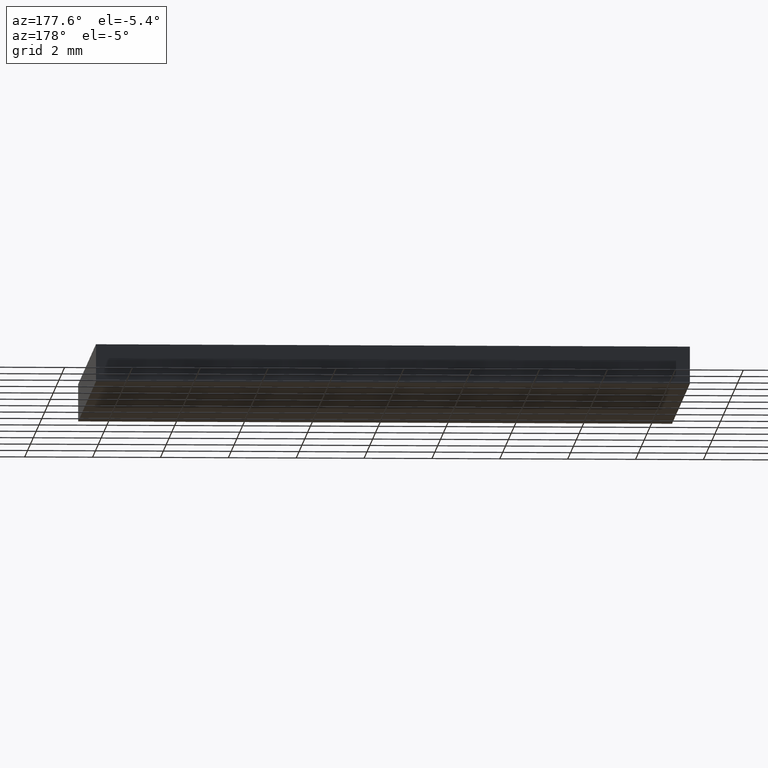
[diagram: clean part render]
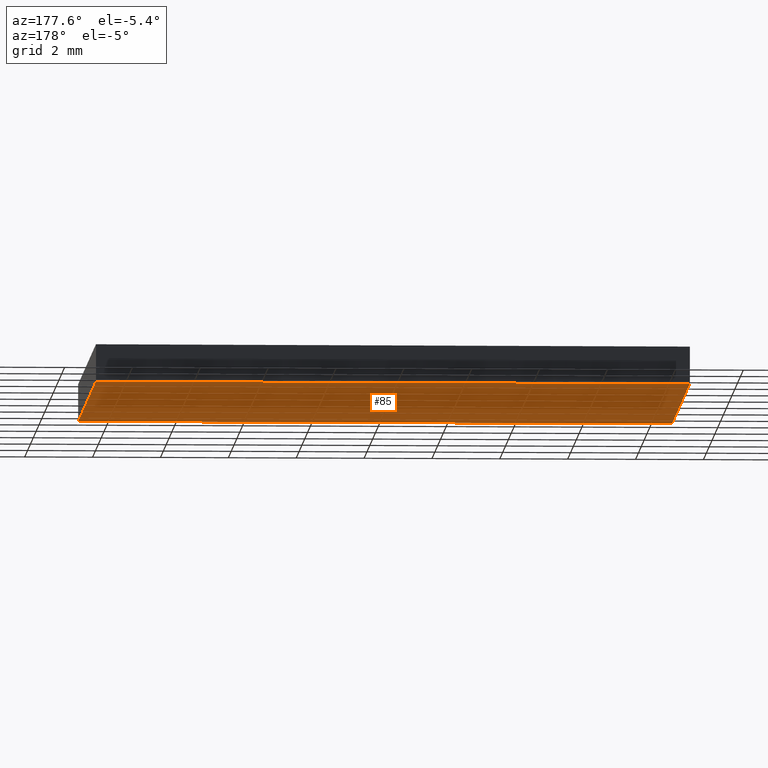
[diagram: same view with one face highlighted and labeled with its STEP entity id]
A machine part, auxiliary view. The second image highlights one B-rep face of the part: STEP entity #85.
In plain terms, the highlighted planar face has unit normal (0, 0, -1).
Its self-contained STEP definition (entity closure, byte-faithful):
#11 = CARTESIAN_POINT ( 'NONE',  ( -8.750000000000000000, -6.249999999999999100, 0.0000000000000000000 ) ) ;
#13 = DIRECTION ( 'NONE',  ( 0.0000000000000000000, 1.000000000000000000, 0.0000000000000000000 ) ) ;
#22 = VERTEX_POINT ( 'NONE', #11 ) ;
#40 = DIRECTION ( 'NONE',  ( 1.000000000000000000, 0.0000000000000000000, 0.0000000000000000000 ) ) ;
#41 = DIRECTION ( 'NONE',  ( -1.000000000000000000, 0.0000000000000000000, -0.0000000000000000000 ) ) ;
#42 = ORIENTED_EDGE ( 'NONE', *, *, #106, .F. ) ;
#43 = AXIS2_PLACEMENT_3D ( 'NONE', #194, #108, #41 ) ;
#46 = EDGE_CURVE ( 'NONE', #99, #296, #201, .T. ) ;
#56 = EDGE_CURVE ( 'NONE', #22, #99, #220, .T. ) ;
#61 = CARTESIAN_POINT ( 'NONE',  ( 8.750000000000000000, -6.249999999999999100, 0.0000000000000000000 ) ) ;
#74 = VECTOR ( 'NONE', #80, 1000.000000000000000 ) ;
#80 = DIRECTION ( 'NONE',  ( -0.0000000000000000000, -1.000000000000000000, -0.0000000000000000000 ) ) ;
#85 = ADVANCED_FACE ( 'NONE', ( #233 ), #159, .T. ) ;
#91 = CARTESIAN_POINT ( 'NONE',  ( 8.750000000000000000, -6.249999999999999100, 0.0000000000000000000 ) ) ;
#96 = ORIENTED_EDGE ( 'NONE', *, *, #46, .F. ) ;
#99 = VERTEX_POINT ( 'NONE', #91 ) ;
#106 = EDGE_CURVE ( 'NONE', #221, #22, #212, .T. ) ;
#108 = DIRECTION ( 'NONE',  ( 0.0000000000000000000, 0.0000000000000000000, -1.000000000000000000 ) ) ;
#112 = CARTESIAN_POINT ( 'NONE',  ( -8.750000000000000000, 6.250000000000000900, 0.0000000000000000000 ) ) ;
#132 = CARTESIAN_POINT ( 'NONE',  ( -8.750000000000000000, -6.249999999999999100, 0.0000000000000000000 ) ) ;
#139 = VECTOR ( 'NONE', #13, 1000.000000000000000 ) ;
#148 = EDGE_LOOP ( 'NONE', ( #96, #278, #42, #192 ) ) ;
#159 = PLANE ( 'NONE',  #43 ) ;
#162 = DIRECTION ( 'NONE',  ( -1.000000000000000000, -0.0000000000000000000, -0.0000000000000000000 ) ) ;
#185 = VECTOR ( 'NONE', #162, 1000.000000000000000 ) ;
#186 = VECTOR ( 'NONE', #40, 1000.000000000000000 ) ;
#192 = ORIENTED_EDGE ( 'NONE', *, *, #290, .F. ) ;
#194 = CARTESIAN_POINT ( 'NONE',  ( 0.0000000000000000000, 0.0000000000000000000, 0.0000000000000000000 ) ) ;
#201 = LINE ( 'NONE', #61, #139 ) ;
#204 = CARTESIAN_POINT ( 'NONE',  ( 8.750000000000000000, 6.250000000000000900, 0.0000000000000000000 ) ) ;
#212 = LINE ( 'NONE', #272, #74 ) ;
#220 = LINE ( 'NONE', #132, #186 ) ;
#221 = VERTEX_POINT ( 'NONE', #112 ) ;
#228 = CARTESIAN_POINT ( 'NONE',  ( -8.750000000000000000, 6.250000000000000900, 0.0000000000000000000 ) ) ;
#233 = FACE_OUTER_BOUND ( 'NONE', #148, .T. ) ;
#272 = CARTESIAN_POINT ( 'NONE',  ( -8.750000000000000000, -6.249999999999999100, 0.0000000000000000000 ) ) ;
#278 = ORIENTED_EDGE ( 'NONE', *, *, #56, .F. ) ;
#290 = EDGE_CURVE ( 'NONE', #296, #221, #292, .T. ) ;
#292 = LINE ( 'NONE', #228, #185 ) ;
#296 = VERTEX_POINT ( 'NONE', #204 ) ;